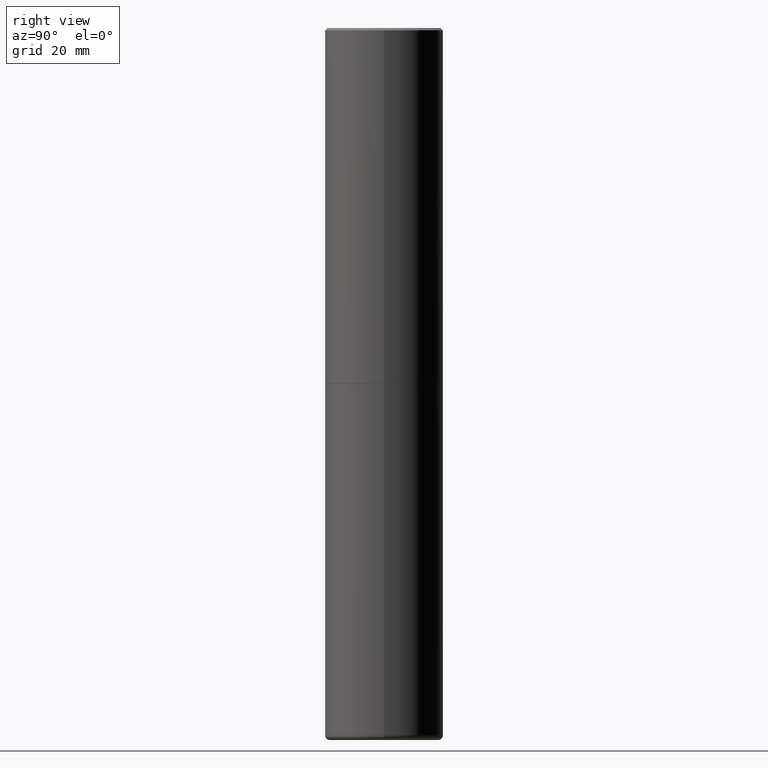
[diagram: clean part render]
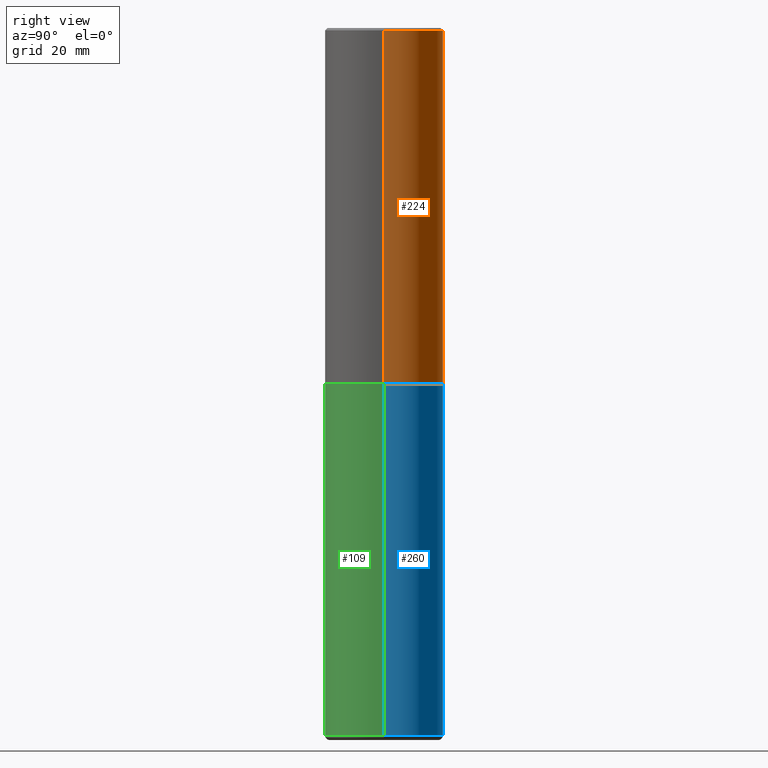
[diagram: same view with three faces highlighted in distinct colors, each labeled with its STEP entity id]
A machine part, right view with three faces highlighted in distinct colors.
Their STEP definitions:

[orange] entity #224 — the highlighted cylindrical surface (partial cylindrical patch) has radius 12.5006 mm, axis along (-0, 0, 1).
#8 = VERTEX_POINT ( 'NONE', #305 ) ;
#22 = LINE ( 'NONE', #90, #212 ) ;
#24 = LINE ( 'NONE', #148, #102 ) ;
#27 = EDGE_CURVE ( 'NONE', #8, #30, #231, .T. ) ;
#30 = VERTEX_POINT ( 'NONE', #108 ) ;
#88 = DIRECTION ( 'NONE',  ( 1.000000000000000000, -6.982962677686265922E-15, 4.876176775795935793E-29 ) ) ;
#90 = CARTESIAN_POINT ( 'NONE',  ( -0.4921500000000000874, 3.496936074043333686E-15, -2.420853904668952350E-29 ) ) ;
#102 = VECTOR ( 'NONE', #403, 39.37007874015748143 ) ;
#106 = DIRECTION ( 'NONE',  ( -2.445468806185136597E-29, 3.491481338843145583E-15, 1.000000000000000000 ) ) ;
#108 = CARTESIAN_POINT ( 'NONE',  ( -0.4921500000000003094, -1.690881473276751010E-15, -2.951700000000000212 ) ) ;
#117 = CIRCLE ( 'NONE', #396, 0.4921499999999999764 ) ;
#119 = FACE_OUTER_BOUND ( 'NONE', #355, .T. ) ;
#120 = EDGE_CURVE ( 'NONE', #8, #306, #24, .T. ) ;
#122 = DIRECTION ( 'NONE',  ( -2.445468806185136877E-29, 3.491481338843145188E-15, 1.000000000000000000 ) ) ;
#135 = ORIENTED_EDGE ( 'NONE', *, *, #27, .T. ) ;
#146 = EDGE_CURVE ( 'NONE', #30, #311, #22, .T. ) ;
#148 = CARTESIAN_POINT ( 'NONE',  ( 0.4921500000000000874, -3.436665081823296565E-15, 2.399810400207970163E-29 ) ) ;
#155 = CARTESIAN_POINT ( 'NONE',  ( -0.4921499999999999764, 3.366835455046432478E-15, -0.02000000000000010797 ) ) ;
#160 = CARTESIAN_POINT ( 'NONE',  ( 4.890937612370299433E-31, -6.982962677686328587E-17, -0.02000000000000010797 ) ) ;
#170 = ORIENTED_EDGE ( 'NONE', *, *, #120, .F. ) ;
#183 = DIRECTION ( 'NONE',  ( -2.445468806185136597E-29, 3.491481338843145583E-15, 1.000000000000000000 ) ) ;
#194 = DIRECTION ( 'NONE',  ( 1.000000000000000000, -6.982962677686265922E-15, 0.000000000000000000 ) ) ;
#212 = VECTOR ( 'NONE', #122, 39.37007874015748143 ) ;
#224 = ADVANCED_FACE ( 'NONE', ( #119 ), #381, .T. ) ;
#231 = CIRCLE ( 'NONE', #349, 0.4921500000000003094 ) ;
#236 = DIRECTION ( 'NONE',  ( 1.000000000000000000, -6.982962677686265922E-15, 0.000000000000000000 ) ) ;
#258 = EDGE_CURVE ( 'NONE', #306, #311, #117, .T. ) ;
#280 = CARTESIAN_POINT ( 'NONE',  ( 0.000000000000000000, 0.000000000000000000, 0.000000000000000000 ) ) ;
#285 = ORIENTED_EDGE ( 'NONE', *, *, #258, .F. ) ;
#286 = DIRECTION ( 'NONE',  ( -2.445468806185136597E-29, 3.491481338843145583E-15, 1.000000000000000000 ) ) ;
#305 = CARTESIAN_POINT ( 'NONE',  ( 0.4921500000000003094, -1.374247054968661252E-14, -2.951700000000000212 ) ) ;
#306 = VERTEX_POINT ( 'NONE', #385 ) ;
#311 = VERTEX_POINT ( 'NONE', #155 ) ;
#326 = CARTESIAN_POINT ( 'NONE',  ( 7.218290275216666916E-29, -1.030580546786331359E-14, -2.951700000000000212 ) ) ;
#349 = AXIS2_PLACEMENT_3D ( 'NONE', #326, #106, #236 ) ;
#355 = EDGE_LOOP ( 'NONE', ( #135, #408, #285, #170 ) ) ;
#381 = CYLINDRICAL_SURFACE ( 'NONE', #389, 0.4921500000000000874 ) ;
#385 = CARTESIAN_POINT ( 'NONE',  ( 0.4921499999999999764, -3.446223716380122349E-15, -0.02000000000000010797 ) ) ;
#389 = AXIS2_PLACEMENT_3D ( 'NONE', #280, #183, #88 ) ;
#396 = AXIS2_PLACEMENT_3D ( 'NONE', #160, #286, #194 ) ;
#403 = DIRECTION ( 'NONE',  ( -2.445468806185136877E-29, 3.491481338843145188E-15, 1.000000000000000000 ) ) ;
#408 = ORIENTED_EDGE ( 'NONE', *, *, #146, .T. ) ;

[blue] entity #260 — the highlighted cylindrical surface (partial cylindrical patch) has radius 12.5006 mm, axis along (-0, 0, 1).
#28 = VERTEX_POINT ( 'NONE', #198 ) ;
#31 = CARTESIAN_POINT ( 'NONE',  ( -0.4921500000000000874, -1.698444260774444222E-14, -5.866100000000000314 ) ) ;
#32 = DIRECTION ( 'NONE',  ( -2.445468806185136877E-29, 3.491481338843145188E-15, 1.000000000000000000 ) ) ;
#45 = VECTOR ( 'NONE', #339, 39.37007874015748143 ) ;
#51 = EDGE_LOOP ( 'NONE', ( #353, #193, #356, #66 ) ) ;
#58 = LINE ( 'NONE', #84, #45 ) ;
#66 = ORIENTED_EDGE ( 'NONE', *, *, #301, .F. ) ;
#69 = VERTEX_POINT ( 'NONE', #367 ) ;
#84 = CARTESIAN_POINT ( 'NONE',  ( -0.4921499999999999764, 3.496936074043332897E-15, -2.420853904668951509E-29 ) ) ;
#99 = LINE ( 'NONE', #319, #104 ) ;
#104 = VECTOR ( 'NONE', #32, 39.37007874015748143 ) ;
#124 = DIRECTION ( 'NONE',  ( -2.445468806185136597E-29, 3.491481338843145583E-15, 1.000000000000000000 ) ) ;
#125 = FACE_OUTER_BOUND ( 'NONE', #51, .T. ) ;
#137 = VERTEX_POINT ( 'NONE', #175 ) ;
#143 = CARTESIAN_POINT ( 'NONE',  ( 7.220735744022852519E-29, -1.030929694920215502E-14, -2.952700000000000102 ) ) ;
#164 = EDGE_CURVE ( 'NONE', #324, #69, #58, .T. ) ;
#171 = AXIS2_PLACEMENT_3D ( 'NONE', #318, #124, #325 ) ;
#175 = CARTESIAN_POINT ( 'NONE',  ( 0.4921499999999999764, -1.374596203102545079E-14, -2.952700000000000102 ) ) ;
#193 = ORIENTED_EDGE ( 'NONE', *, *, #164, .T. ) ;
#198 = CARTESIAN_POINT ( 'NONE',  ( 0.4921500000000000874, -2.391804376361107326E-14, -5.866100000000000314 ) ) ;
#207 = AXIS2_PLACEMENT_3D ( 'NONE', #255, #257, #413 ) ;
#209 = CIRCLE ( 'NONE', #262, 0.4921499999999999764 ) ;
#226 = EDGE_CURVE ( 'NONE', #137, #69, #209, .T. ) ;
#244 = DIRECTION ( 'NONE',  ( -2.445468806185136597E-29, 3.491481338843145583E-15, 1.000000000000000000 ) ) ;
#255 = CARTESIAN_POINT ( 'NONE',  ( 1.434536456396262923E-28, -2.048137868178777591E-14, -5.866100000000000314 ) ) ;
#257 = DIRECTION ( 'NONE',  ( -2.445468806185136597E-29, 3.491481338843145583E-15, 1.000000000000000000 ) ) ;
#260 = ADVANCED_FACE ( 'NONE', ( #125 ), #387, .T. ) ;
#262 = AXIS2_PLACEMENT_3D ( 'NONE', #143, #244, #374 ) ;
#301 = EDGE_CURVE ( 'NONE', #28, #137, #99, .T. ) ;
#308 = CIRCLE ( 'NONE', #207, 0.4921499999999999764 ) ;
#318 = CARTESIAN_POINT ( 'NONE',  ( 0.000000000000000000, 0.000000000000000000, 0.000000000000000000 ) ) ;
#319 = CARTESIAN_POINT ( 'NONE',  ( 0.4921499999999999764, -3.436665081823295777E-15, 2.399810400207969603E-29 ) ) ;
#324 = VERTEX_POINT ( 'NONE', #31 ) ;
#325 = DIRECTION ( 'NONE',  ( 1.000000000000000000, -6.982962677686265922E-15, 4.876176775795935793E-29 ) ) ;
#339 = DIRECTION ( 'NONE',  ( -2.445468806185136877E-29, 3.491481338843145188E-15, 1.000000000000000000 ) ) ;
#353 = ORIENTED_EDGE ( 'NONE', *, *, #390, .T. ) ;
#356 = ORIENTED_EDGE ( 'NONE', *, *, #226, .F. ) ;
#367 = CARTESIAN_POINT ( 'NONE',  ( -0.4921499999999999764, -1.189840174145163414E-14, -2.952700000000000102 ) ) ;
#374 = DIRECTION ( 'NONE',  ( 1.000000000000000000, -6.982962677686265922E-15, 0.000000000000000000 ) ) ;
#387 = CYLINDRICAL_SURFACE ( 'NONE', #171, 0.4921499999999999764 ) ;
#390 = EDGE_CURVE ( 'NONE', #28, #324, #308, .T. ) ;
#413 = DIRECTION ( 'NONE',  ( 1.000000000000000000, -6.982962677686265922E-15, 0.000000000000000000 ) ) ;

[green] entity #109 — the highlighted cylindrical surface (partial cylindrical patch) has radius 12.5006 mm, axis along (-0, 0, 1).
#21 = CIRCLE ( 'NONE', #410, 0.4921499999999999764 ) ;
#28 = VERTEX_POINT ( 'NONE', #198 ) ;
#31 = CARTESIAN_POINT ( 'NONE',  ( -0.4921500000000000874, -1.698444260774444222E-14, -5.866100000000000314 ) ) ;
#32 = DIRECTION ( 'NONE',  ( -2.445468806185136877E-29, 3.491481338843145188E-15, 1.000000000000000000 ) ) ;
#39 = ORIENTED_EDGE ( 'NONE', *, *, #301, .T. ) ;
#45 = VECTOR ( 'NONE', #339, 39.37007874015748143 ) ;
#58 = LINE ( 'NONE', #84, #45 ) ;
#61 = CARTESIAN_POINT ( 'NONE',  ( 1.434536456396262923E-28, -2.048137868178777591E-14, -5.866100000000000314 ) ) ;
#69 = VERTEX_POINT ( 'NONE', #367 ) ;
#72 = EDGE_LOOP ( 'NONE', ( #299, #400, #39, #246 ) ) ;
#84 = CARTESIAN_POINT ( 'NONE',  ( -0.4921499999999999764, 3.496936074043332897E-15, -2.420853904668951509E-29 ) ) ;
#99 = LINE ( 'NONE', #319, #104 ) ;
#104 = VECTOR ( 'NONE', #32, 39.37007874015748143 ) ;
#109 = ADVANCED_FACE ( 'NONE', ( #251 ), #180, .T. ) ;
#137 = VERTEX_POINT ( 'NONE', #175 ) ;
#149 = CIRCLE ( 'NONE', #359, 0.4921499999999999764 ) ;
#164 = EDGE_CURVE ( 'NONE', #324, #69, #58, .T. ) ;
#175 = CARTESIAN_POINT ( 'NONE',  ( 0.4921499999999999764, -1.374596203102545079E-14, -2.952700000000000102 ) ) ;
#177 = DIRECTION ( 'NONE',  ( -2.445468806185136597E-29, 3.491481338843145583E-15, 1.000000000000000000 ) ) ;
#180 = CYLINDRICAL_SURFACE ( 'NONE', #312, 0.4921499999999999764 ) ;
#191 = DIRECTION ( 'NONE',  ( -2.445468806185136597E-29, 3.491481338843145583E-15, 1.000000000000000000 ) ) ;
#198 = CARTESIAN_POINT ( 'NONE',  ( 0.4921500000000000874, -2.391804376361107326E-14, -5.866100000000000314 ) ) ;
#220 = DIRECTION ( 'NONE',  ( 1.000000000000000000, -6.982962677686265922E-15, 4.876176775795935793E-29 ) ) ;
#246 = ORIENTED_EDGE ( 'NONE', *, *, #288, .F. ) ;
#251 = FACE_OUTER_BOUND ( 'NONE', #72, .T. ) ;
#269 = EDGE_CURVE ( 'NONE', #324, #28, #149, .T. ) ;
#279 = CARTESIAN_POINT ( 'NONE',  ( 0.000000000000000000, 0.000000000000000000, 0.000000000000000000 ) ) ;
#288 = EDGE_CURVE ( 'NONE', #69, #137, #21, .T. ) ;
#299 = ORIENTED_EDGE ( 'NONE', *, *, #164, .F. ) ;
#301 = EDGE_CURVE ( 'NONE', #28, #137, #99, .T. ) ;
#312 = AXIS2_PLACEMENT_3D ( 'NONE', #279, #177, #220 ) ;
#319 = CARTESIAN_POINT ( 'NONE',  ( 0.4921499999999999764, -3.436665081823295777E-15, 2.399810400207969603E-29 ) ) ;
#323 = DIRECTION ( 'NONE',  ( 1.000000000000000000, -6.982962677686265922E-15, 0.000000000000000000 ) ) ;
#324 = VERTEX_POINT ( 'NONE', #31 ) ;
#339 = DIRECTION ( 'NONE',  ( -2.445468806185136877E-29, 3.491481338843145188E-15, 1.000000000000000000 ) ) ;
#345 = DIRECTION ( 'NONE',  ( 1.000000000000000000, -6.982962677686265922E-15, 0.000000000000000000 ) ) ;
#348 = DIRECTION ( 'NONE',  ( -2.445468806185136597E-29, 3.491481338843145583E-15, 1.000000000000000000 ) ) ;
#359 = AXIS2_PLACEMENT_3D ( 'NONE', #61, #348, #345 ) ;
#367 = CARTESIAN_POINT ( 'NONE',  ( -0.4921499999999999764, -1.189840174145163414E-14, -2.952700000000000102 ) ) ;
#388 = CARTESIAN_POINT ( 'NONE',  ( 7.220735744022852519E-29, -1.030929694920215502E-14, -2.952700000000000102 ) ) ;
#400 = ORIENTED_EDGE ( 'NONE', *, *, #269, .T. ) ;
#410 = AXIS2_PLACEMENT_3D ( 'NONE', #388, #191, #323 ) ;